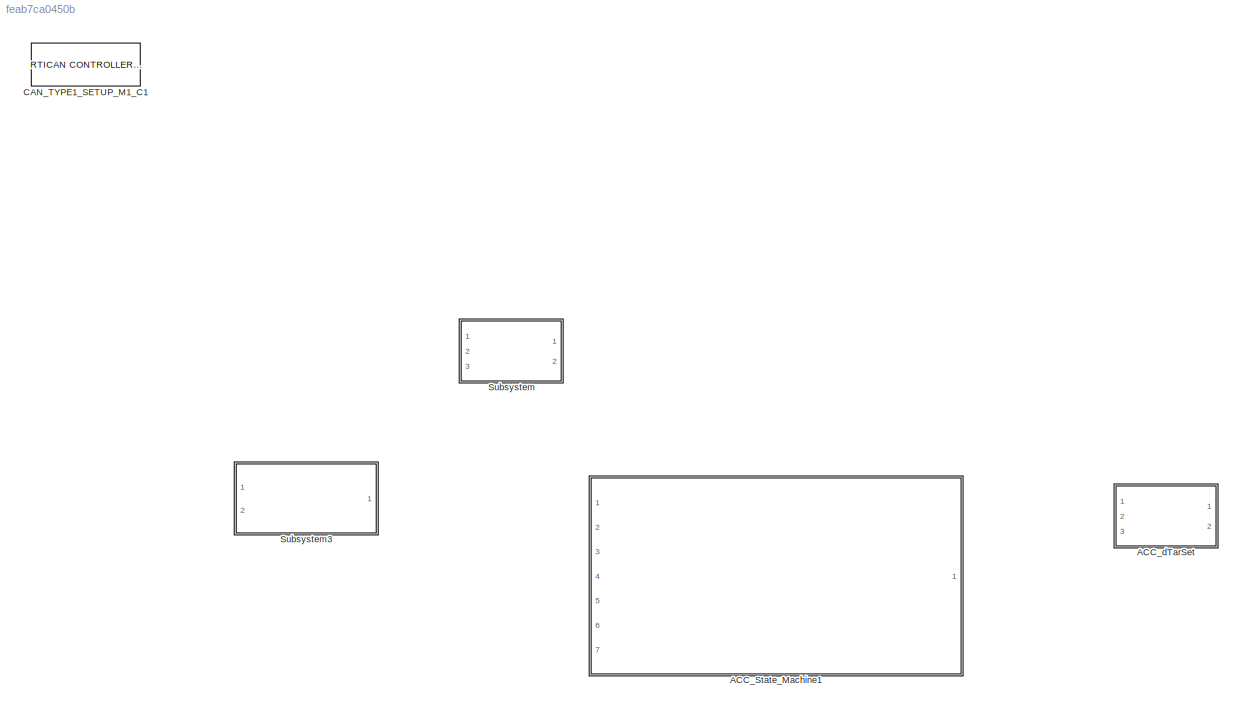
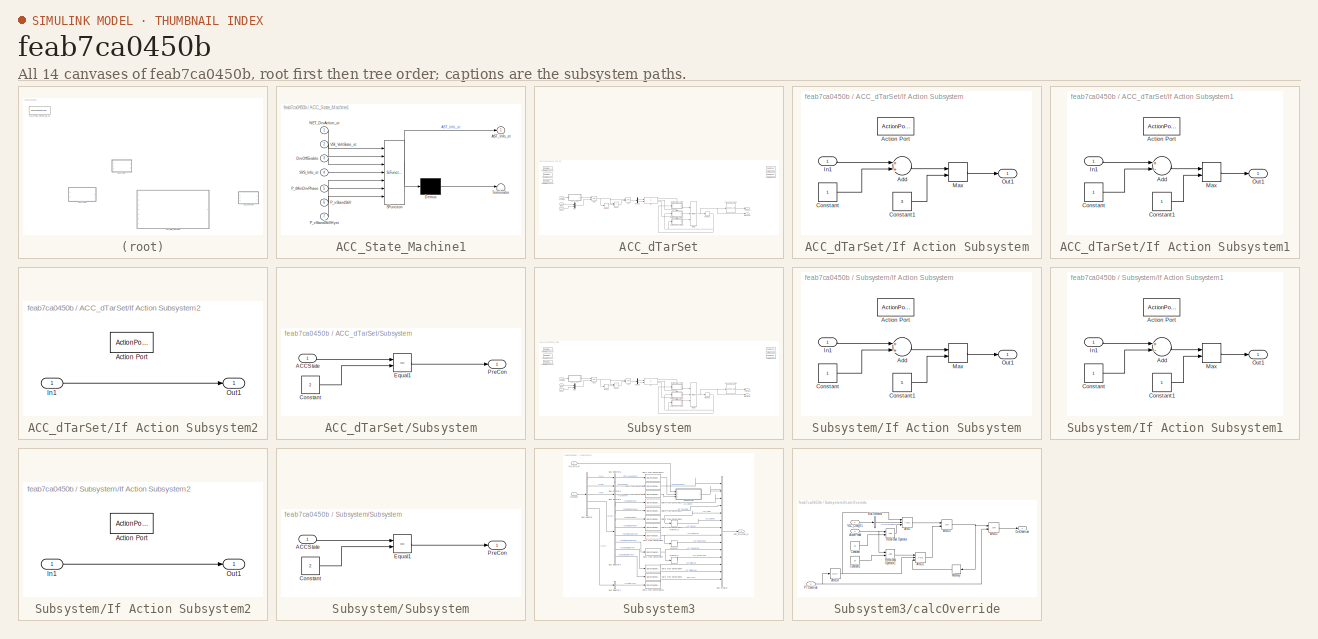
[diagram: thumbnail index - all 14 canvases of the model, root first then tree order]
MODEL slx_feab7ca0450b
KIND model
CONFIG AbsTol = auto
CONFIG EnableMultiTasking = off
CONFIG FixedStep = 1
CONFIG MaxStep = auto
CONFIG MinStep = auto
CONFIG PostLoadFcn = if any(exist('dsrtsu_mdlpostloadfcn', 'file') ~= 0), dsrtsu_mdlpostloadfcn('Execute', bdroot); end
CONFIG RelTol = 1e-3
CONFIG SampleTimeConstraint = Unconstrained
CONFIG Solver = FixedStepAuto
CONFIG SolverName = FixedStepAuto
CONFIG StartTime = 0.0
CONFIG StopTime = 20
BLOCK [SubSystem] ACC_State_Machine1
  ErrorFcn = Stateflow.Translate.translate
  PermitHierarchicalResolution = ExplicitOnly
  Ports = [7, 1]
  RequestExecContextInheritance = off
  SFBlockType = Chart
  TreatAsAtomicUnit = on
BLOCK [Demux] ACC_State_Machine1/ Demux 
  Outputs = 1
  Ports = [1, 1]
BLOCK [S-Function] ACC_State_Machine1/ SFunction 
  EnableBusSupport = on
  FunctionName = sf_sfun
  PortCounts = [7 2]
  Ports = [7, 2]
  SFcnIsStateOwnerBlock = off
  SFunctionDeploymentMode = off
  Tag = Stateflow S-Function TEST 2
BLOCK [Terminator] ACC_State_Machine1/ Terminator 
BLOCK [Outport] ACC_State_Machine1/AST_Info_st
  IconDisplay = Port number
BLOCK [Inport] ACC_State_Machine1/DrvOffEnable
  IconDisplay = Port number
  Port = 3
BLOCK [Inport] ACC_State_Machine1/NET_DrvAction_st
  IconDisplay = Port number
BLOCK [Inport] ACC_State_Machine1/P_tMinDrvPhase
  IconDisplay = Port number
  Port = 5
BLOCK [Inport] ACC_State_Machine1/P_vStandStill
  IconDisplay = Port number
  Port = 6
BLOCK [Inport] ACC_State_Machine1/P_vStandStillHyst
  IconDisplay = Port number
  Port = 7
BLOCK [Inport] ACC_State_Machine1/SYS_Info_st
  IconDisplay = Port number
  Port = 4
BLOCK [Inport] ACC_State_Machine1/VSI_VehState_st
  IconDisplay = Port number
  Port = 2
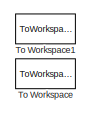
[diagram: ACC_dTarSet - part 1/3, top right region]
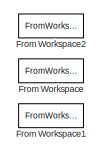
[diagram: ACC_dTarSet - part 2/3, top left region]
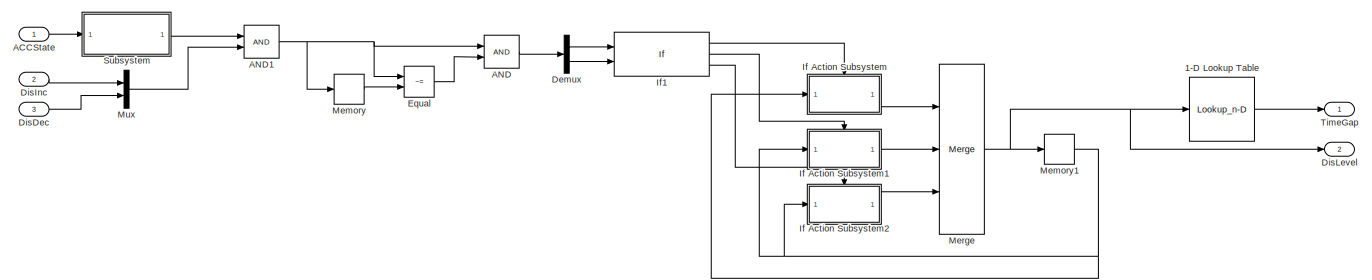
[diagram: ACC_dTarSet - part 3/3, full width, bottom band]
BLOCK [SubSystem] ACC_dTarSet
  Ports = [3, 2]
  RequestExecContextInheritance = off
BLOCK [Lookup_n-D] ACC_dTarSet/1-D Lookup Table
  BreakpointsForDimension1 = [1 2 3]
  InternalRulePriority = Speed
  InterpMethod = Flat
  NumberOfTableDimensions = 1
  Ports = [1, 1]
  RndMeth = Simplest
  Table = [1.2 1.8 2.1]
BLOCK [Inport] ACC_dTarSet/ACCState
  IconDisplay = Port number
BLOCK [Logic] ACC_dTarSet/AND
  AllPortsSameDT = off
  OutDataTypeStr = boolean
  Ports = [2, 1]
BLOCK [Logic] ACC_dTarSet/AND1
  AllPortsSameDT = off
  OutDataTypeStr = boolean
  Ports = [2, 1]
BLOCK [Demux] ACC_dTarSet/Demux
  DisplayOption = bar
  Outputs = 2
  Ports = [1, 2]
BLOCK [Inport] ACC_dTarSet/DisDec
  IconDisplay = Port number
  Port = 3
BLOCK [Inport] ACC_dTarSet/DisInc
  IconDisplay = Port number
  Port = 2
BLOCK [Outport] ACC_dTarSet/DisLevel
  IconDisplay = Port number
  Port = 2
BLOCK [RelationalOperator] ACC_dTarSet/Equal
  InputSameDT = off
  Operator = ~=
  OutDataTypeStr = boolean
  Ports = [2, 1]
  RndMeth = Simplest
BLOCK [FromWorkspace] ACC_dTarSet/From Workspace
  Commented = on
  SampleTime = 0
  VariableName = [t a]
  ZeroCross = on
BLOCK [FromWorkspace] ACC_dTarSet/From Workspace1
  Commented = on
  SampleTime = 0
  VariableName = [t b]
  ZeroCross = on
BLOCK [FromWorkspace] ACC_dTarSet/From Workspace2
  Commented = on
  SampleTime = 0
  VariableName = [t c]
  ZeroCross = on
BLOCK [SubSystem] ACC_dTarSet/If Action Subsystem
  Ports = [1, 1, 0, 0, 0, 0, 0, 1]
  RequestExecContextInheritance = off
  TreatAsAtomicUnit = on
BLOCK [ActionPort] ACC_dTarSet/If Action Subsystem/Action Port
BLOCK [Sum] ACC_dTarSet/If Action Subsystem/Add
  InputSameDT = off
  OutDataTypeStr = Inherit: Inherit via internal rule
  Ports = [2, 1]
  SaturateOnIntegerOverflow = off
BLOCK [Constant] ACC_dTarSet/If Action Subsystem/Constant
  OutDataTypeStr = single
BLOCK [Constant] ACC_dTarSet/If Action Subsystem/Constant1
  OutDataTypeStr = single
  Value = 3
BLOCK [Inport] ACC_dTarSet/If Action Subsystem/In1
  IconDisplay = Port number
BLOCK [MinMax] ACC_dTarSet/If Action Subsystem/Max
  InputSameDT = off
  Inputs = 2
  Ports = [2, 1]
  SaturateOnIntegerOverflow = off
BLOCK [Outport] ACC_dTarSet/If Action Subsystem/Out1
  IconDisplay = Port number
BLOCK [SubSystem] ACC_dTarSet/If Action Subsystem1
  Ports = [1, 1, 0, 0, 0, 0, 0, 1]
  RequestExecContextInheritance = off
  TreatAsAtomicUnit = on
BLOCK [ActionPort] ACC_dTarSet/If Action Subsystem1/Action Port
BLOCK [Sum] ACC_dTarSet/If Action Subsystem1/Add
  InputSameDT = off
  Inputs = +-
  OutDataTypeStr = Inherit: Inherit via internal rule
  Ports = [2, 1]
  SaturateOnIntegerOverflow = off
BLOCK [Constant] ACC_dTarSet/If Action Subsystem1/Constant
  OutDataTypeStr = single
BLOCK [Constant] ACC_dTarSet/If Action Subsystem1/Constant1
  OutDataTypeStr = single
BLOCK [Inport] ACC_dTarSet/If Action Subsystem1/In1
  IconDisplay = Port number
BLOCK [MinMax] ACC_dTarSet/If Action Subsystem1/Max
  Function = max
  InputSameDT = off
  Inputs = 2
  Ports = [2, 1]
  SaturateOnIntegerOverflow = off
BLOCK [Outport] ACC_dTarSet/If Action Subsystem1/Out1
  IconDisplay = Port number
BLOCK [SubSystem] ACC_dTarSet/If Action Subsystem2
  Ports = [1, 1, 0, 0, 0, 0, 0, 1]
  RequestExecContextInheritance = off
  TreatAsAtomicUnit = on
BLOCK [ActionPort] ACC_dTarSet/If Action Subsystem2/Action Port
BLOCK [Inport] ACC_dTarSet/If Action Subsystem2/In1
  IconDisplay = Port number
BLOCK [Outport] ACC_dTarSet/If Action Subsystem2/Out1
  IconDisplay = Port number
BLOCK [If] ACC_dTarSet/If1
  ElseIfExpressions = u2 == 1
  IfExpression = u1 == 1
  NumInputs = 2
  Ports = [2, 3]
BLOCK [Memory] ACC_dTarSet/Memory
BLOCK [Memory] ACC_dTarSet/Memory1
  InitialCondition = 3
BLOCK [Merge] ACC_dTarSet/Merge
  InitialOutput = 0
  Inputs = 3
  Ports = [3, 1]
BLOCK [Mux] ACC_dTarSet/Mux
  DisplayOption = bar
  Inputs = 2
  Ports = [2, 1]
BLOCK [SubSystem] ACC_dTarSet/Subsystem
  Ports = [1, 1]
  RequestExecContextInheritance = off
BLOCK [Inport] ACC_dTarSet/Subsystem/ACCState
  IconDisplay = Port number
BLOCK [Constant] ACC_dTarSet/Subsystem/Constant
  OutDataTypeStr = single
  Value = 2
BLOCK [RelationalOperator] ACC_dTarSet/Subsystem/Equal1
  InputSameDT = off
  Operator = ==
  OutDataTypeStr = boolean
  Ports = [2, 1]
  RndMeth = Simplest
BLOCK [Outport] ACC_dTarSet/Subsystem/PreCon
  IconDisplay = Port number
BLOCK [Outport] ACC_dTarSet/TimeGap
  IconDisplay = Port number
BLOCK [ToWorkspace] ACC_dTarSet/To Workspace
  Commented = on
  FixptAsFi = on
  MaxDataPoints = inf
  Ports = [1]
  SampleTime = -1
  Save2DSignal = 3-D array (concatenate along third dimension)
  SaveFormat = Timeseries
  VariableName = simout
BLOCK [ToWorkspace] ACC_dTarSet/To Workspace1
  Commented = on
  FixptAsFi = on
  MaxDataPoints = inf
  Ports = [1]
  SampleTime = -1
  Save2DSignal = 3-D array (concatenate along third dimension)
  SaveFormat = Timeseries
  VariableName = simout1
BLOCK [Reference] CAN_TYPE1_SETUP_M1_C1  REF=rtican/RTICAN
CONTROLLER SETUP 
  AttributesFormatString = Group Id: RTICAN1\n
  Ports = []
  SourceBlock = rtican/RTICAN\nCONTROLLER SETUP
  SourceProductName = dSPACE RTI CAN Blockset
  SourceType = RTI
BLOCK [SubSystem] Subsystem
  Ports = [3, 2]
  RequestExecContextInheritance = off
BLOCK [Lookup_n-D] Subsystem/1-D Lookup Table
  BreakpointsForDimension1 = [1 2 3 4 5]
  InternalRulePriority = Speed
  InterpMethod = Flat
  NumberOfTableDimensions = 1
  Ports = [1, 1]
  RndMeth = Simplest
  Table = [1.1 1.4 1.6 1.8 2.1]
BLOCK [Inport] Subsystem/ACCState
  IconDisplay = Port number
BLOCK [Logic] Subsystem/AND
  AllPortsSameDT = off
  OutDataTypeStr = boolean
  Ports = [2, 1]
BLOCK [Logic] Subsystem/AND1
  AllPortsSameDT = off
  OutDataTypeStr = boolean
  Ports = [2, 1]
BLOCK [Demux] Subsystem/Demux
  DisplayOption = bar
  Outputs = 2
  Ports = [1, 2]
BLOCK [Inport] Subsystem/DisDec
  IconDisplay = Port number
  Port = 3
BLOCK [Inport] Subsystem/DisInc
  IconDisplay = Port number
  Port = 2
BLOCK [Outport] Subsystem/DisLevel
  IconDisplay = Port number
  Port = 2
BLOCK [RelationalOperator] Subsystem/Equal
  InputSameDT = off
  Operator = ~=
  OutDataTypeStr = boolean
  Ports = [2, 1]
  RndMeth = Simplest
BLOCK [FromWorkspace] Subsystem/From Workspace
  Commented = on
  SampleTime = 0
  VariableName = [t a]
  ZeroCross = on
BLOCK [FromWorkspace] Subsystem/From Workspace1
  Commented = on
  SampleTime = 0
  VariableName = [t b]
  ZeroCross = on
BLOCK [FromWorkspace] Subsystem/From Workspace2
  Commented = on
  SampleTime = 0
  VariableName = [t c]
  ZeroCross = on
BLOCK [SubSystem] Subsystem/If Action Subsystem
  Ports = [1, 1, 0, 0, 0, 0, 0, 1]
  RequestExecContextInheritance = off
  TreatAsAtomicUnit = on
BLOCK [ActionPort] Subsystem/If Action Subsystem/Action Port
  ActionType = then
BLOCK [Sum] Subsystem/If Action Subsystem/Add
  InputSameDT = off
  OutDataTypeStr = Inherit: Inherit via internal rule
  Ports = [2, 1]
  SaturateOnIntegerOverflow = off
BLOCK [Constant] Subsystem/If Action Subsystem/Constant
  OutDataTypeStr = single
BLOCK [Constant] Subsystem/If Action Subsystem/Constant1
  OutDataTypeStr = single
  Value = 5
BLOCK [Inport] Subsystem/If Action Subsystem/In1
  IconDisplay = Port number
BLOCK [MinMax] Subsystem/If Action Subsystem/Max
  InputSameDT = off
  Inputs = 2
  Ports = [2, 1]
  SaturateOnIntegerOverflow = off
BLOCK [Outport] Subsystem/If Action Subsystem/Out1
  IconDisplay = Port number
BLOCK [SubSystem] Subsystem/If Action Subsystem1
  Ports = [1, 1, 0, 0, 0, 0, 0, 1]
  RequestExecContextInheritance = off
  TreatAsAtomicUnit = on
BLOCK [ActionPort] Subsystem/If Action Subsystem1/Action Port
  ActionType = elseif
BLOCK [Sum] Subsystem/If Action Subsystem1/Add
  InputSameDT = off
  Inputs = +-
  OutDataTypeStr = Inherit: Inherit via internal rule
  Ports = [2, 1]
  SaturateOnIntegerOverflow = off
BLOCK [Constant] Subsystem/If Action Subsystem1/Constant
  OutDataTypeStr = single
BLOCK [Constant] Subsystem/If Action Subsystem1/Constant1
  OutDataTypeStr = single
BLOCK [Inport] Subsystem/If Action Subsystem1/In1
  IconDisplay = Port number
BLOCK [MinMax] Subsystem/If Action Subsystem1/Max
  Function = max
  InputSameDT = off
  Inputs = 2
  Ports = [2, 1]
  SaturateOnIntegerOverflow = off
BLOCK [Outport] Subsystem/If Action Subsystem1/Out1
  IconDisplay = Port number
BLOCK [SubSystem] Subsystem/If Action Subsystem2
  Ports = [1, 1, 0, 0, 0, 0, 0, 1]
  RequestExecContextInheritance = off
  TreatAsAtomicUnit = on
BLOCK [ActionPort] Subsystem/If Action Subsystem2/Action Port
  ActionType = else
BLOCK [Inport] Subsystem/If Action Subsystem2/In1
  IconDisplay = Port number
BLOCK [Outport] Subsystem/If Action Subsystem2/Out1
  IconDisplay = Port number
BLOCK [If] Subsystem/If1
  ElseIfExpressions = u2 == 1
  IfExpression = u1 == 1
  NumInputs = 2
  Ports = [2, 3]
BLOCK [Memory] Subsystem/Memory
BLOCK [Memory] Subsystem/Memory1
  InitialCondition = 5
BLOCK [Merge] Subsystem/Merge
  InitialOutput = 0
  Inputs = 3
  Ports = [3, 1]
BLOCK [Mux] Subsystem/Mux
  DisplayOption = bar
  Inputs = 2
  Ports = [2, 1]
BLOCK [SubSystem] Subsystem/Subsystem
  Ports = [1, 1]
  RequestExecContextInheritance = off
BLOCK [Inport] Subsystem/Subsystem/ACCState
  IconDisplay = Port number
BLOCK [Constant] Subsystem/Subsystem/Constant
  OutDataTypeStr = single
  Value = 2
BLOCK [RelationalOperator] Subsystem/Subsystem/Equal1
  InputSameDT = off
  Operator = ==
  OutDataTypeStr = boolean
  Ports = [2, 1]
  RndMeth = Simplest
BLOCK [Outport] Subsystem/Subsystem/PreCon
  IconDisplay = Port number
BLOCK [Outport] Subsystem/TimeGap
  IconDisplay = Port number
BLOCK [ToWorkspace] Subsystem/To Workspace
  Commented = on
  FixptAsFi = on
  MaxDataPoints = inf
  Ports = [1]
  SampleTime = -1
  Save2DSignal = 3-D array (concatenate along third dimension)
  SaveFormat = Timeseries
  VariableName = simout
BLOCK [ToWorkspace] Subsystem/To Workspace1
  Commented = on
  FixptAsFi = on
  MaxDataPoints = inf
  Ports = [1]
  SampleTime = -1
  Save2DSignal = 3-D array (concatenate along third dimension)
  SaveFormat = Timeseries
  VariableName = simout1
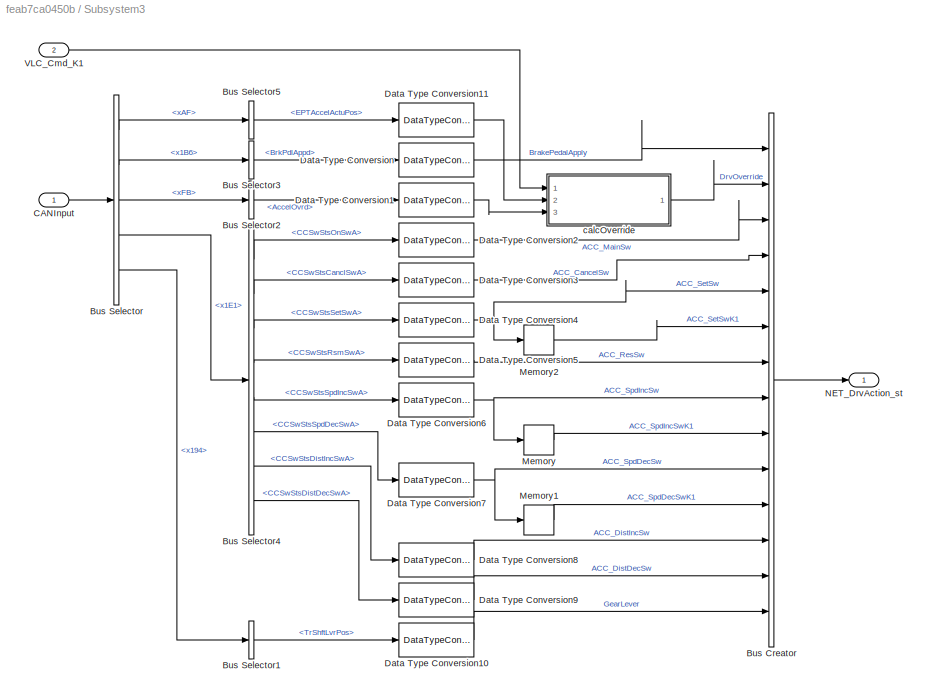
BLOCK [SubSystem] Subsystem3
  Ports = [2, 1]
  RequestExecContextInheritance = off
BLOCK [BusCreator] Subsystem3/Bus Creator
  DisplayOption = bar
  InheritFromInputs = on
  Inputs = 14
  NonVirtualBus = on
  OutDataTypeStr = Bus: NET_DRVACTION_ST
  Ports = [14, 1]
BLOCK [BusSelector] Subsystem3/Bus Selector
  OutputAsBus = off
  OutputSignals = xAF,x1B6,xFB,x1E1,x194
  Ports = [1, 5]
BLOCK [BusSelector] Subsystem3/Bus Selector1
  OutputAsBus = off
  OutputSignals = TrShftLvrPos
  Ports = [1, 1]
BLOCK [BusSelector] Subsystem3/Bus Selector2
  OutputAsBus = off
  OutputSignals = AccelOvrd
  Ports = [1, 1]
BLOCK [BusSelector] Subsystem3/Bus Selector3
  OutputAsBus = off
  OutputSignals = BrkPdlAppd
  Ports = [1, 1]
BLOCK [BusSelector] Subsystem3/Bus Selector4
  OutputAsBus = off
  OutputSignals = CCSwStsOnSwA,CCSwStsCanclSwA,CCSwStsSetSwA,CCSwStsRsmSwA,CCSwStsSpdIncSwA,CCSwStsSpdDecSwA,CCSwStsDistIncSwA,CCSwStsDistDecSwA
  Ports = [1, 8]
BLOCK [BusSelector] Subsystem3/Bus Selector5
  OutputAsBus = off
  OutputSignals = EPTAccelActuPos
  Ports = [1, 1]
BLOCK [Inport] Subsystem3/CANInput
  IconDisplay = Port number
BLOCK [DataTypeConversion] Subsystem3/Data Type Conversion
  OutDataTypeStr = boolean
  RndMeth = Floor
  SaturateOnIntegerOverflow = off
BLOCK [DataTypeConversion] Subsystem3/Data Type Conversion1
  OutDataTypeStr = boolean
  RndMeth = Floor
  SaturateOnIntegerOverflow = off
BLOCK [DataTypeConversion] Subsystem3/Data Type Conversion10
  OutDataTypeStr = single
  RndMeth = Floor
  SaturateOnIntegerOverflow = off
BLOCK [DataTypeConversion] Subsystem3/Data Type Conversion11
  OutDataTypeStr = single
  RndMeth = Floor
  SaturateOnIntegerOverflow = off
BLOCK [DataTypeConversion] Subsystem3/Data Type Conversion2
  OutDataTypeStr = boolean
  RndMeth = Floor
  SaturateOnIntegerOverflow = off
BLOCK [DataTypeConversion] Subsystem3/Data Type Conversion3
  OutDataTypeStr = boolean
  RndMeth = Floor
  SaturateOnIntegerOverflow = off
BLOCK [DataTypeConversion] Subsystem3/Data Type Conversion4
  OutDataTypeStr = boolean
  RndMeth = Floor
  SaturateOnIntegerOverflow = off
BLOCK [DataTypeConversion] Subsystem3/Data Type Conversion5
  OutDataTypeStr = boolean
  RndMeth = Floor
  SaturateOnIntegerOverflow = off
BLOCK [DataTypeConversion] Subsystem3/Data Type Conversion6
  OutDataTypeStr = boolean
  RndMeth = Floor
  SaturateOnIntegerOverflow = off
BLOCK [DataTypeConversion] Subsystem3/Data Type Conversion7
  OutDataTypeStr = boolean
  RndMeth = Floor
  SaturateOnIntegerOverflow = off
BLOCK [DataTypeConversion] Subsystem3/Data Type Conversion8
  OutDataTypeStr = boolean
  RndMeth = Floor
  SaturateOnIntegerOverflow = off
BLOCK [DataTypeConversion] Subsystem3/Data Type Conversion9
  OutDataTypeStr = boolean
  RndMeth = Floor
  SaturateOnIntegerOverflow = off
BLOCK [Memory] Subsystem3/Memory
BLOCK [Memory] Subsystem3/Memory1
BLOCK [Memory] Subsystem3/Memory2
BLOCK [Outport] Subsystem3/NET_DrvAction_st
  IconDisplay = Port number
  OutDataTypeStr = Bus: NET_DRVACTION_ST
BLOCK [Inport] Subsystem3/VLC_Cmd_K1
  IconDisplay = Port number
  Port = 2
BLOCK [SubSystem] Subsystem3/calcOverride
  Ports = [3, 1]
  RequestExecContextInheritance = off
BLOCK [Logic] Subsystem3/calcOverride/AND
  AllPortsSameDT = off
  Inputs = 3
  OutDataTypeStr = boolean
  Ports = [3, 1]
BLOCK [Logic] Subsystem3/calcOverride/AND1
  AllPortsSameDT = off
  Operator = OR
  OutDataTypeStr = boolean
  Ports = [2, 1]
BLOCK [Logic] Subsystem3/calcOverride/AND2
  AllPortsSameDT = off
  Inputs = 3
  OutDataTypeStr = boolean
  Ports = [3, 1]
BLOCK [Logic] Subsystem3/calcOverride/AND3
  AllPortsSameDT = off
  Operator = OR
  OutDataTypeStr = boolean
  Ports = [2, 1]
BLOCK [Logic] Subsystem3/calcOverride/AND4
  AllPortsSameDT = off
  Operator = NOT
  OutDataTypeStr = boolean
  Ports = [1, 1]
BLOCK [Inport] Subsystem3/calcOverride/AccelPedal
  IconDisplay = Port number
  Port = 2
BLOCK [BusSelector] Subsystem3/calcOverride/Bus Selector
  OutputAsBus = off
  OutputSignals = CDDEnable
  Ports = [1, 1]
BLOCK [Constant] Subsystem3/calcOverride/Constant
  Value = 15
BLOCK [Constant] Subsystem3/calcOverride/Constant1
  Value = 10
BLOCK [Outport] Subsystem3/calcOverride/DrvOverride
  IconDisplay = Port number
BLOCK [Memory] Subsystem3/calcOverride/Memory
BLOCK [Inport] Subsystem3/calcOverride/PTOverride
  IconDisplay = Port number
  Port = 3
BLOCK [RelationalOperator] Subsystem3/calcOverride/Relational Operator
  InputSameDT = off
  OutDataTypeStr = boolean
  Ports = [2, 1]
  RndMeth = Simplest
BLOCK [RelationalOperator] Subsystem3/calcOverride/Relational Operator1
  InputSameDT = off
  OutDataTypeStr = boolean
  Ports = [2, 1]
  RndMeth = Simplest
BLOCK [Inport] Subsystem3/calcOverride/VLC_Cmd_K1
  IconDisplay = Port number
LINE ACC_dTarSet/1-D Lookup Table:1 -> ACC_dTarSet/TimeGap:1
LINE ACC_dTarSet/ACCState:1 -> ACC_dTarSet/Subsystem:1
NET ACC_dTarSet/AND1:1 -> ACC_dTarSet/AND:1, ACC_dTarSet/Equal:1, ACC_dTarSet/Memory:1
LINE ACC_dTarSet/AND:1 -> ACC_dTarSet/Demux:1
LINE ACC_dTarSet/Demux:1 -> ACC_dTarSet/If1:1
LINE ACC_dTarSet/Demux:2 -> ACC_dTarSet/If1:2
LINE ACC_dTarSet/DisDec:1 -> ACC_dTarSet/Mux:2
LINE ACC_dTarSet/DisInc:1 -> ACC_dTarSet/Mux:1
LINE ACC_dTarSet/Equal:1 -> ACC_dTarSet/AND:2
LINE ACC_dTarSet/If Action Subsystem/Add:1 -> ACC_dTarSet/If Action Subsystem/Max:1
LINE ACC_dTarSet/If Action Subsystem/Constant1:1 -> ACC_dTarSet/If Action Subsystem/Max:2
LINE ACC_dTarSet/If Action Subsystem/Constant:1 -> ACC_dTarSet/If Action Subsystem/Add:2
LINE ACC_dTarSet/If Action Subsystem/In1:1 -> ACC_dTarSet/If Action Subsystem/Add:1
LINE ACC_dTarSet/If Action Subsystem/Max:1 -> ACC_dTarSet/If Action Subsystem/Out1:1
LINE ACC_dTarSet/If Action Subsystem1/Add:1 -> ACC_dTarSet/If Action Subsystem1/Max:1
LINE ACC_dTarSet/If Action Subsystem1/Constant1:1 -> ACC_dTarSet/If Action Subsystem1/Max:2
LINE ACC_dTarSet/If Action Subsystem1/Constant:1 -> ACC_dTarSet/If Action Subsystem1/Add:2
LINE ACC_dTarSet/If Action Subsystem1/In1:1 -> ACC_dTarSet/If Action Subsystem1/Add:1
LINE ACC_dTarSet/If Action Subsystem1/Max:1 -> ACC_dTarSet/If Action Subsystem1/Out1:1
LINE ACC_dTarSet/If Action Subsystem1:1 -> ACC_dTarSet/Merge:2
LINE ACC_dTarSet/If Action Subsystem2/In1:1 -> ACC_dTarSet/If Action Subsystem2/Out1:1
LINE ACC_dTarSet/If Action Subsystem2:1 -> ACC_dTarSet/Merge:3
LINE ACC_dTarSet/If Action Subsystem:1 -> ACC_dTarSet/Merge:1
LINE ACC_dTarSet/If1:1 -> ACC_dTarSet/If Action Subsystem:ifaction
LINE ACC_dTarSet/If1:2 -> ACC_dTarSet/If Action Subsystem1:ifaction
LINE ACC_dTarSet/If1:3 -> ACC_dTarSet/If Action Subsystem2:ifaction
NET ACC_dTarSet/Memory1:1 -> ACC_dTarSet/If Action Subsystem1:1, ACC_dTarSet/If Action Subsystem2:1, ACC_dTarSet/If Action Subsystem:1
LINE ACC_dTarSet/Memory:1 -> ACC_dTarSet/Equal:2
NET ACC_dTarSet/Merge:1 -> ACC_dTarSet/1-D Lookup Table:1, ACC_dTarSet/DisLevel:1, ACC_dTarSet/Memory1:1
LINE ACC_dTarSet/Mux:1 -> ACC_dTarSet/AND1:2
LINE ACC_dTarSet/Subsystem/ACCState:1 -> ACC_dTarSet/Subsystem/Equal1:1
LINE ACC_dTarSet/Subsystem/Constant:1 -> ACC_dTarSet/Subsystem/Equal1:2
LINE ACC_dTarSet/Subsystem/Equal1:1 -> ACC_dTarSet/Subsystem/PreCon:1
LINE ACC_dTarSet/Subsystem:1 -> ACC_dTarSet/AND1:1
LINE Subsystem/1-D Lookup Table:1 -> Subsystem/TimeGap:1
LINE Subsystem/ACCState:1 -> Subsystem/Subsystem:1
NET Subsystem/AND1:1 -> Subsystem/AND:1, Subsystem/Equal:1, Subsystem/Memory:1
LINE Subsystem/AND:1 -> Subsystem/Demux:1
LINE Subsystem/Demux:1 -> Subsystem/If1:1
LINE Subsystem/Demux:2 -> Subsystem/If1:2
LINE Subsystem/DisDec:1 -> Subsystem/Mux:2
LINE Subsystem/DisInc:1 -> Subsystem/Mux:1
LINE Subsystem/Equal:1 -> Subsystem/AND:2
LINE Subsystem/If Action Subsystem/Add:1 -> Subsystem/If Action Subsystem/Max:1
LINE Subsystem/If Action Subsystem/Constant1:1 -> Subsystem/If Action Subsystem/Max:2
LINE Subsystem/If Action Subsystem/Constant:1 -> Subsystem/If Action Subsystem/Add:2
LINE Subsystem/If Action Subsystem/In1:1 -> Subsystem/If Action Subsystem/Add:1
LINE Subsystem/If Action Subsystem/Max:1 -> Subsystem/If Action Subsystem/Out1:1
LINE Subsystem/If Action Subsystem1/Add:1 -> Subsystem/If Action Subsystem1/Max:1
LINE Subsystem/If Action Subsystem1/Constant1:1 -> Subsystem/If Action Subsystem1/Max:2
LINE Subsystem/If Action Subsystem1/Constant:1 -> Subsystem/If Action Subsystem1/Add:2
LINE Subsystem/If Action Subsystem1/In1:1 -> Subsystem/If Action Subsystem1/Add:1
LINE Subsystem/If Action Subsystem1/Max:1 -> Subsystem/If Action Subsystem1/Out1:1
LINE Subsystem/If Action Subsystem1:1 -> Subsystem/Merge:2
LINE Subsystem/If Action Subsystem2/In1:1 -> Subsystem/If Action Subsystem2/Out1:1
LINE Subsystem/If Action Subsystem2:1 -> Subsystem/Merge:3
LINE Subsystem/If Action Subsystem:1 -> Subsystem/Merge:1
LINE Subsystem/If1:1 -> Subsystem/If Action Subsystem:ifaction
LINE Subsystem/If1:2 -> Subsystem/If Action Subsystem1:ifaction
LINE Subsystem/If1:3 -> Subsystem/If Action Subsystem2:ifaction
NET Subsystem/Memory1:1 -> Subsystem/If Action Subsystem1:1, Subsystem/If Action Subsystem2:1, Subsystem/If Action Subsystem:1
LINE Subsystem/Memory:1 -> Subsystem/Equal:2
NET Subsystem/Merge:1 -> Subsystem/1-D Lookup Table:1, Subsystem/DisLevel:1, Subsystem/Memory1:1
LINE Subsystem/Mux:1 -> Subsystem/AND1:2
LINE Subsystem/Subsystem/ACCState:1 -> Subsystem/Subsystem/Equal1:1
LINE Subsystem/Subsystem/Constant:1 -> Subsystem/Subsystem/Equal1:2
LINE Subsystem/Subsystem/Equal1:1 -> Subsystem/Subsystem/PreCon:1
LINE Subsystem/Subsystem:1 -> Subsystem/AND1:1
LINE Subsystem3/Bus Creator:1 -> Subsystem3/NET_DrvAction_st:1
LINE Subsystem3/Bus Selector1:1 -> Subsystem3/Data Type Conversion10:1
LINE Subsystem3/Bus Selector2:1 -> Subsystem3/Data Type Conversion1:1
LINE Subsystem3/Bus Selector3:1 -> Subsystem3/Data Type Conversion:1
LINE Subsystem3/Bus Selector4:1 -> Subsystem3/Data Type Conversion2:1
LINE Subsystem3/Bus Selector4:2 -> Subsystem3/Data Type Conversion3:1
LINE Subsystem3/Bus Selector4:3 -> Subsystem3/Data Type Conversion4:1
LINE Subsystem3/Bus Selector4:4 -> Subsystem3/Data Type Conversion5:1
LINE Subsystem3/Bus Selector4:5 -> Subsystem3/Data Type Conversion6:1
LINE Subsystem3/Bus Selector4:6 -> Subsystem3/Data Type Conversion7:1
LINE Subsystem3/Bus Selector4:7 -> Subsystem3/Data Type Conversion8:1
LINE Subsystem3/Bus Selector4:8 -> Subsystem3/Data Type Conversion9:1
LINE Subsystem3/Bus Selector5:1 -> Subsystem3/Data Type Conversion11:1
LINE Subsystem3/Bus Selector:1 -> Subsystem3/Bus Selector5:1
LINE Subsystem3/Bus Selector:2 -> Subsystem3/Bus Selector3:1
LINE Subsystem3/Bus Selector:3 -> Subsystem3/Bus Selector2:1
LINE Subsystem3/Bus Selector:4 -> Subsystem3/Bus Selector4:1
LINE Subsystem3/Bus Selector:5 -> Subsystem3/Bus Selector1:1
LINE Subsystem3/CANInput:1 -> Subsystem3/Bus Selector:1
LINE Subsystem3/Data Type Conversion10:1 -> Subsystem3/Bus Creator:14
LINE Subsystem3/Data Type Conversion11:1 -> Subsystem3/calcOverride:2
LINE Subsystem3/Data Type Conversion1:1 -> Subsystem3/calcOverride:3
LINE Subsystem3/Data Type Conversion2:1 -> Subsystem3/Bus Creator:3
LINE Subsystem3/Data Type Conversion3:1 -> Subsystem3/Bus Creator:4
NET Subsystem3/Data Type Conversion4:1 -> Subsystem3/Bus Creator:5, Subsystem3/Memory2:1
LINE Subsystem3/Data Type Conversion5:1 -> Subsystem3/Bus Creator:7
NET Subsystem3/Data Type Conversion6:1 -> Subsystem3/Bus Creator:8, Subsystem3/Memory:1
NET Subsystem3/Data Type Conversion7:1 -> Subsystem3/Bus Creator:10, Subsystem3/Memory1:1
LINE Subsystem3/Data Type Conversion8:1 -> Subsystem3/Bus Creator:12
LINE Subsystem3/Data Type Conversion9:1 -> Subsystem3/Bus Creator:13
LINE Subsystem3/Data Type Conversion:1 -> Subsystem3/Bus Creator:1
LINE Subsystem3/Memory1:1 -> Subsystem3/Bus Creator:11
LINE Subsystem3/Memory2:1 -> Subsystem3/Bus Creator:6
LINE Subsystem3/Memory:1 -> Subsystem3/Bus Creator:9
LINE Subsystem3/VLC_Cmd_K1:1 -> Subsystem3/calcOverride:1
LINE Subsystem3/calcOverride/AND1:1 -> Subsystem3/calcOverride/DrvOverride:1
LINE Subsystem3/calcOverride/AND2:1 -> Subsystem3/calcOverride/AND3:2
NET Subsystem3/calcOverride/AND3:1 -> Subsystem3/calcOverride/AND1:1, Subsystem3/calcOverride/Memory:1
NET Subsystem3/calcOverride/AND4:1 -> Subsystem3/calcOverride/AND2:2, Subsystem3/calcOverride/AND:1
LINE Subsystem3/calcOverride/AND:1 -> Subsystem3/calcOverride/AND3:1
NET Subsystem3/calcOverride/AccelPedal:1 -> Subsystem3/calcOverride/Relational Operator1:1, Subsystem3/calcOverride/Relational Operator:1
LINE Subsystem3/calcOverride/Bus Selector:1 -> Subsystem3/calcOverride/AND:2
LINE Subsystem3/calcOverride/Constant1:1 -> Subsystem3/calcOverride/Relational Operator1:2
LINE Subsystem3/calcOverride/Constant:1 -> Subsystem3/calcOverride/Relational Operator:2
LINE Subsystem3/calcOverride/Memory:1 -> Subsystem3/calcOverride/AND2:3
NET Subsystem3/calcOverride/PTOverride:1 -> Subsystem3/calcOverride/AND1:2, Subsystem3/calcOverride/AND4:1
LINE Subsystem3/calcOverride/Relational Operator1:1 -> Subsystem3/calcOverride/AND2:1
LINE Subsystem3/calcOverride/Relational Operator:1 -> Subsystem3/calcOverride/AND:3
LINE Subsystem3/calcOverride/VLC_Cmd_K1:1 -> Subsystem3/calcOverride/Bus Selector:1
LINE Subsystem3/calcOverride:1 -> Subsystem3/Bus Creator:2
note: NET lines group one-source signal fan-out (src -> all destinations, sorted); 1:1 wires keep LINE
CHART ACC_State_Machine1 states=7 transitions=13
  STATE_LABEL 'MainState\n0\tOFF\n1\tPASSIVE\n2\tACTIVE_Drive\n3\tACTIVE_Standstill\n4\tOVERRIDE'
  STATE_LABEL 'OFF\n\nen:\nAST_Info_st.MainState = 0;\nAST_Info_st.tMinInDrv = 0;\nAST_Info_st.vSet = 0;'
  STATE_LABEL 'OVERRIDE\n\nen:\nAST_Info_st.MainState = 4;\nAST_Info_st.tMinInDrv = 0;'
  STATE_LABEL 'PASSIVE\n\nen:\nAST_Info_st.MainState = 1;\nAST_Info_st.tMinInDrv = 0;'
  STATE_LABEL 'ACTIVE\n\nen:\nif ((NET_DrvAction_st.ACC_SetSw == 1)&&(NET_DrvAction_st.ACC_SetSwK1 == 0))\n    AST_Info_st.vSet = VSI_VehState_st.vRef/1.05;\nend\ndu:\nif ((NET_DrvAction_st.ACC_SpdIncSw == 1)&&(NET_DrvAction_st.ACC_SpdIncSwK1 == 0))\n    AST_Info_st.vSet = floor(AST_Info_st.vSet*1.05*3.6)/1.05/3.6 + single(5 - mod(floor(AST_Info_st.vSet*1.05*3.6),5))/1.05/3.6;\nelse if ((NET_DrvAction_st.ACC_SpdDecSw == ...<+323ch>'
  STATE_LABEL 'Drive\nen:\nAST_Info_st.MainState = 2;\ndu:\nif(VSI_VehState_st.vRef > P_vStandStillHyst)\n    if(AST_Info_st.tMinInDrv > SYS_Info_st.dT)\n        AST_Info_st.tMinInDrv = AST_Info_st.tMinInDrv - SYS_Info_st.dT;\n    else\n        AST_Info_st.tMinInDrv = 0;\n    end\nend'
  STATE_LABEL 'Standstill\nen:\nAST_Info_st.MainState = 3;\nAST_Info_st.tMinInDrv = P_tMinDrvPhase;'
  STATE_LABEL '[VSI_VehState_st.vRef < P_vStandStill...\n&&AST_Info_st.tMinInDrv == 0]'
  STATE_LABEL '[DrvOffEnable == 1]'
  STATE_LABEL 'Drive\nen:\nAST_Info_st.MainState = 2;\ndu:\nif(VSI_VehState_st.vRef > P_vStandStillHyst)\n    if(AST_Info_st.tMinInDrv > SYS_Info_st.dT)\n        AST_Info_st.tMinInDrv = AST_Info_st.tMinInDrv - SYS_Info_st.dT;\n    else\n        AST_Info_st.tMinInDrv = 0;\n    end\nend'
  STATE_LABEL 'Standstill\nen:\nAST_Info_st.MainState = 3;\nAST_Info_st.tMinInDrv = P_tMinDrvPhase;'
